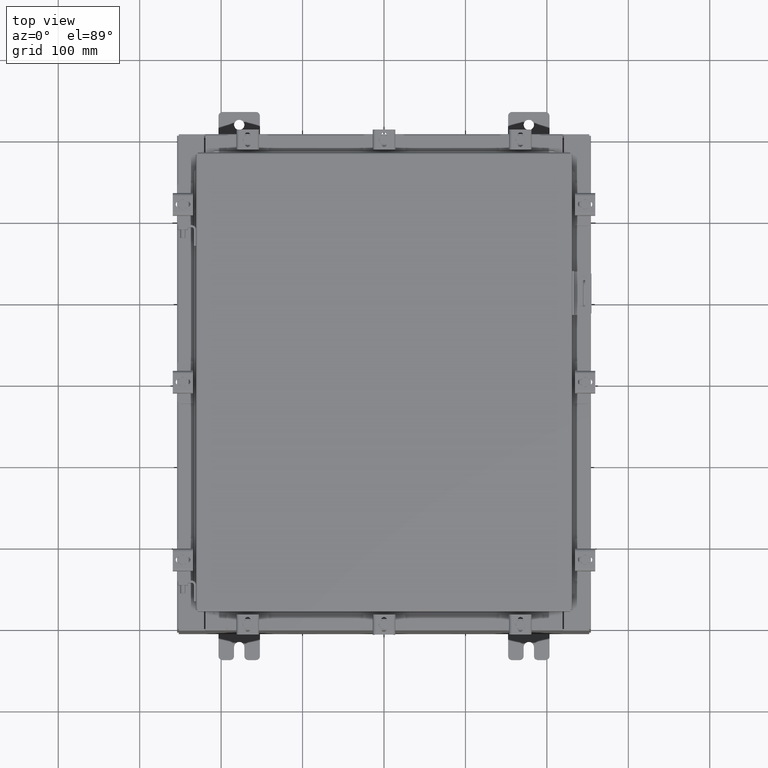
[diagram: clean part render]
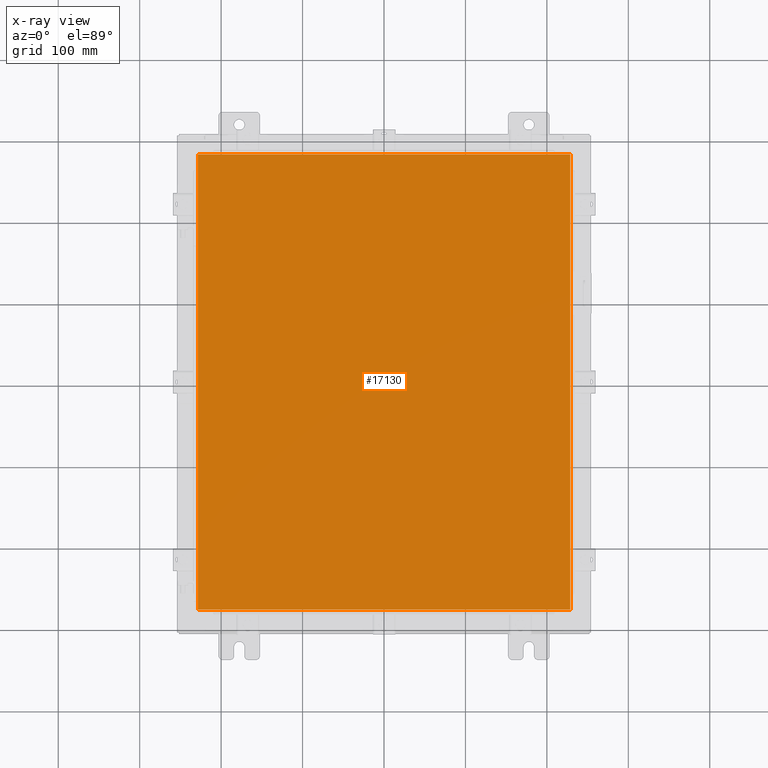
[diagram: x-ray — body ghosted, one internal face saturated and labeled with its STEP entity id]
A machine part, top view, then the same camera in x-ray: the body is ghosted and one INTERNAL B-rep face — a face not visible from any outside direction — is saturated and labeled: STEP entity #17130.
In plain terms, the highlighted planar face has unit normal (0, 0, -1).
Its self-contained STEP definition (entity closure, byte-faithful):
#2310 = CARTESIAN_POINT ( 'NONE',  ( 9.006299999999996000, 11.00630000000000100, -0.07470000000000015500 ) ) ;
#2376 = VECTOR ( 'NONE', #2709, 39.37007874015748100 ) ;
#2709 = DIRECTION ( 'NONE',  ( 1.000000000000000000, -0.0000000000000000000, -0.0000000000000000000 ) ) ;
#3174 = DIRECTION ( 'NONE',  ( 0.0000000000000000000, 0.0000000000000000000, -1.000000000000000000 ) ) ;
#3348 = DIRECTION ( 'NONE',  ( 0.0000000000000000000, -1.000000000000000000, 0.0000000000000000000 ) ) ;
#4047 = CARTESIAN_POINT ( 'NONE',  ( 9.006299999999997800, -11.00629999999999600, -0.07470000000000015500 ) ) ;
#4421 = EDGE_CURVE ( 'NONE', #17402, #11223, #11439, .T. ) ;
#4852 = FACE_OUTER_BOUND ( 'NONE', #17031, .T. ) ;
#4873 = CARTESIAN_POINT ( 'NONE',  ( 0.0000000000000000000, 0.0000000000000000000, -0.07470000000000015500 ) ) ;
#4874 = VECTOR ( 'NONE', #15570, 39.37007874015748100 ) ;
#6305 = VECTOR ( 'NONE', #3348, 39.37007874015748100 ) ;
#7538 = ORIENTED_EDGE ( 'NONE', *, *, #13018, .F. ) ;
#9587 = CARTESIAN_POINT ( 'NONE',  ( -9.006300000000001300, -11.00629999999999600, -0.07470000000000015500 ) ) ;
#10129 = PLANE ( 'NONE',  #14144 ) ;
#11021 = LINE ( 'NONE', #20087, #20318 ) ;
#11223 = VERTEX_POINT ( 'NONE', #13690 ) ;
#11439 = LINE ( 'NONE', #12022, #6305 ) ;
#11631 = LINE ( 'NONE', #9587, #2376 ) ;
#12022 = CARTESIAN_POINT ( 'NONE',  ( -9.006300000000001300, 11.00630000000000100, -0.07470000000000015500 ) ) ;
#12446 = ORIENTED_EDGE ( 'NONE', *, *, #16980, .F. ) ;
#12782 = ORIENTED_EDGE ( 'NONE', *, *, #16550, .F. ) ;
#12899 = VERTEX_POINT ( 'NONE', #2310 ) ;
#13018 = EDGE_CURVE ( 'NONE', #12899, #17402, #11021, .T. ) ;
#13690 = CARTESIAN_POINT ( 'NONE',  ( -9.006300000000001300, -11.00629999999999600, -0.07470000000000015500 ) ) ;
#13813 = CARTESIAN_POINT ( 'NONE',  ( 9.006299999999997800, -11.00629999999999600, -0.07470000000000015500 ) ) ;
#14144 = AXIS2_PLACEMENT_3D ( 'NONE', #4873, #3174, #15390 ) ;
#14888 = DIRECTION ( 'NONE',  ( -1.000000000000000000, -0.0000000000000000000, -0.0000000000000000000 ) ) ;
#15390 = DIRECTION ( 'NONE',  ( -1.000000000000000000, 0.0000000000000000000, -0.0000000000000000000 ) ) ;
#15570 = DIRECTION ( 'NONE',  ( 0.0000000000000000000, 1.000000000000000000, 0.0000000000000000000 ) ) ;
#16550 = EDGE_CURVE ( 'NONE', #19216, #12899, #19349, .T. ) ;
#16767 = CARTESIAN_POINT ( 'NONE',  ( -9.006300000000001300, 11.00630000000000100, -0.07470000000000015500 ) ) ;
#16980 = EDGE_CURVE ( 'NONE', #11223, #19216, #11631, .T. ) ;
#17031 = EDGE_LOOP ( 'NONE', ( #12782, #12446, #19799, #7538 ) ) ;
#17130 = ADVANCED_FACE ( 'NONE', ( #4852 ), #10129, .T. ) ;
#17402 = VERTEX_POINT ( 'NONE', #16767 ) ;
#19216 = VERTEX_POINT ( 'NONE', #4047 ) ;
#19349 = LINE ( 'NONE', #13813, #4874 ) ;
#19799 = ORIENTED_EDGE ( 'NONE', *, *, #4421, .F. ) ;
#20087 = CARTESIAN_POINT ( 'NONE',  ( 9.006299999999997800, 11.00630000000000100, -0.07470000000000234800 ) ) ;
#20318 = VECTOR ( 'NONE', #14888, 39.37007874015748100 ) ;